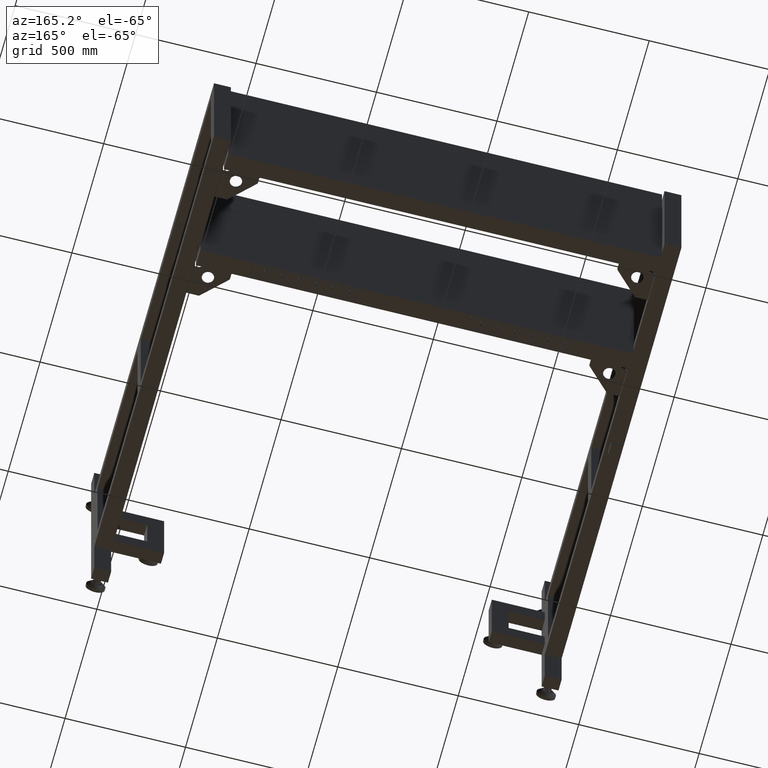
[diagram: clean part render]
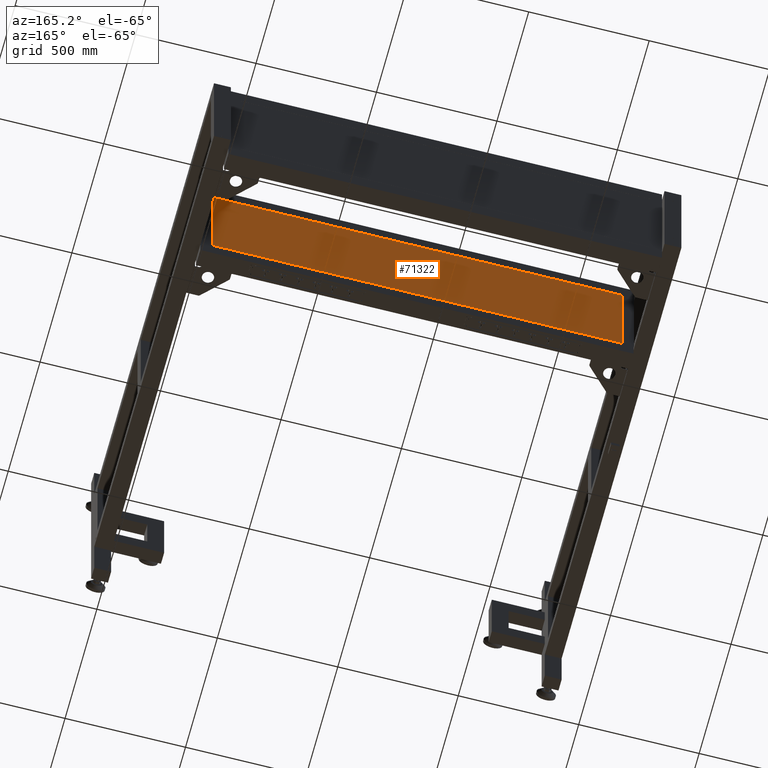
[diagram: same view with one face highlighted and labeled with its STEP entity id]
A machine part, auxiliary view. The second image highlights one B-rep face of the part: STEP entity #71322.
In plain terms, the highlighted planar face has unit normal (-0, 1, -0).
Its self-contained STEP definition (entity closure, byte-faithful):
#901 = LINE ( 'NONE', #74297, #75188 ) ;
#4066 = CARTESIAN_POINT ( 'NONE',  ( 431.8275125628149453, 556.9410804020127443, -228.4899999999998954 ) ) ;
#6170 = DIRECTION ( 'NONE',  ( -2.768038506440323819E-16, 1.000000000000000000, -1.000000000000000472E-15 ) ) ;
#8751 = DIRECTION ( 'NONE',  ( -1.168946273182390932E-31, 1.000000000000000472E-15, 1.000000000000000000 ) ) ;
#11180 = ORIENTED_EDGE ( 'NONE', *, *, #44831, .F. ) ;
#15725 = AXIS2_PLACEMENT_3D ( 'NONE', #36874, #6170, #30477 ) ;
#15923 = CARTESIAN_POINT ( 'NONE',  ( 431.8275125628147180, 556.9410804020129717, 1.095223024625154837E-13 ) ) ;
#18122 = PLANE ( 'NONE',  #15725 ) ;
#18519 = FACE_OUTER_BOUND ( 'NONE', #69772, .T. ) ;
#21176 = VERTEX_POINT ( 'NONE', #76196 ) ;
#24642 = EDGE_CURVE ( 'NONE', #21176, #53922, #28949, .T. ) ;
#27439 = CARTESIAN_POINT ( 'NONE',  ( 480.3175125628156934, 556.9410804020131991, 228.4900000000001228 ) ) ;
#28366 = ORIENTED_EDGE ( 'NONE', *, *, #24642, .T. ) ;
#28949 = LINE ( 'NONE', #60073, #35794 ) ;
#30477 = DIRECTION ( 'NONE',  ( -2.768038506440324911E-31, 1.000000000000000472E-15, 1.000000000000000000 ) ) ;
#34211 = ORIENTED_EDGE ( 'NONE', *, *, #40069, .F. ) ;
#35794 = VECTOR ( 'NONE', #72041, 1000.000000000000000 ) ;
#36874 = CARTESIAN_POINT ( 'NONE',  ( -718.1724874371843725, 556.9410804020126307, 1.095223024625156604E-13 ) ) ;
#37649 = ORIENTED_EDGE ( 'NONE', *, *, #71849, .F. ) ;
#40069 = EDGE_CURVE ( 'NONE', #21176, #61596, #901, .T. ) ;
#44831 = EDGE_CURVE ( 'NONE', #61596, #60609, #63426, .T. ) ;
#49966 = DIRECTION ( 'NONE',  ( 1.000000000000000000, 2.768038506440323819E-16, 0.000000000000000000 ) ) ;
#51447 = VECTOR ( 'NONE', #76104, 1000.000000000000000 ) ;
#53922 = VERTEX_POINT ( 'NONE', #55639 ) ;
#55639 = CARTESIAN_POINT ( 'NONE',  ( -1268.172487437185055, 556.9410804020129717, 228.4900000000001228 ) ) ;
#60073 = CARTESIAN_POINT ( 'NONE',  ( -1268.172487437185055, 556.9410804020127443, 1.095223024625154837E-13 ) ) ;
#60609 = VERTEX_POINT ( 'NONE', #73812 ) ;
#61596 = VERTEX_POINT ( 'NONE', #4066 ) ;
#63426 = LINE ( 'NONE', #15923, #78394 ) ;
#69772 = EDGE_LOOP ( 'NONE', ( #37649, #11180, #34211, #28366 ) ) ;
#71322 = ADVANCED_FACE ( 'NONE', ( #18519 ), #18122, .T. ) ;
#71849 = EDGE_CURVE ( 'NONE', #60609, #53922, #75307, .T. ) ;
#72041 = DIRECTION ( 'NONE',  ( -1.599092233257933979E-31, 1.000000000000000472E-15, 1.000000000000000000 ) ) ;
#73812 = CARTESIAN_POINT ( 'NONE',  ( 431.8275125628147180, 556.9410804020131991, 228.4900000000001228 ) ) ;
#74297 = CARTESIAN_POINT ( 'NONE',  ( -1916.662487437184382, 556.9410804020120622, -228.4899999999998954 ) ) ;
#75188 = VECTOR ( 'NONE', #49966, 1000.000000000000000 ) ;
#75307 = LINE ( 'NONE', #27439, #51447 ) ;
#76104 = DIRECTION ( 'NONE',  ( -1.000000000000000000, -2.768038506440323819E-16, 0.000000000000000000 ) ) ;
#76196 = CARTESIAN_POINT ( 'NONE',  ( -1268.172487437185282, 556.9410804020125170, -228.4899999999998954 ) ) ;
#78394 = VECTOR ( 'NONE', #8751, 1000.000000000000000 ) ;